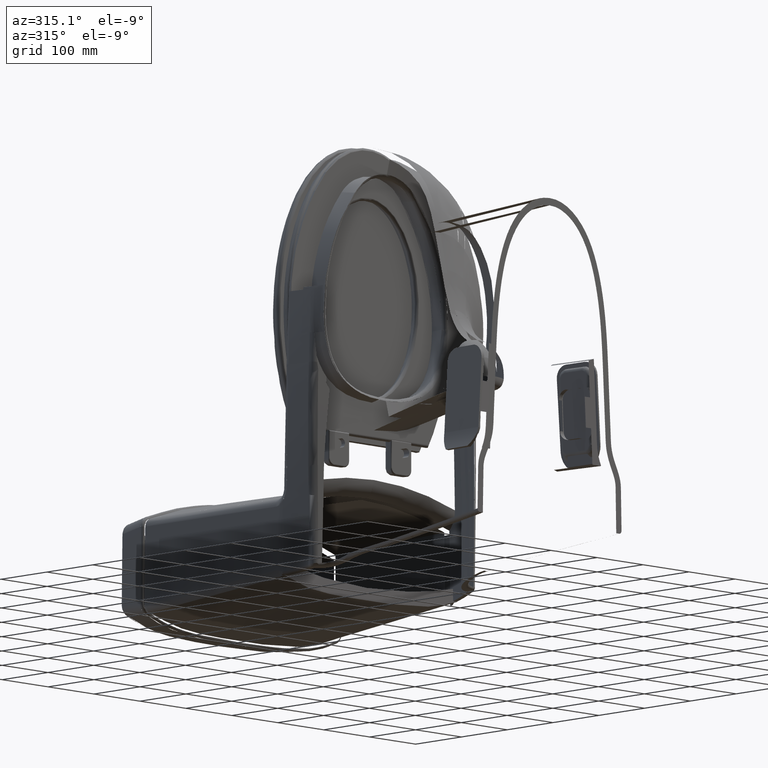
[diagram: clean part render]
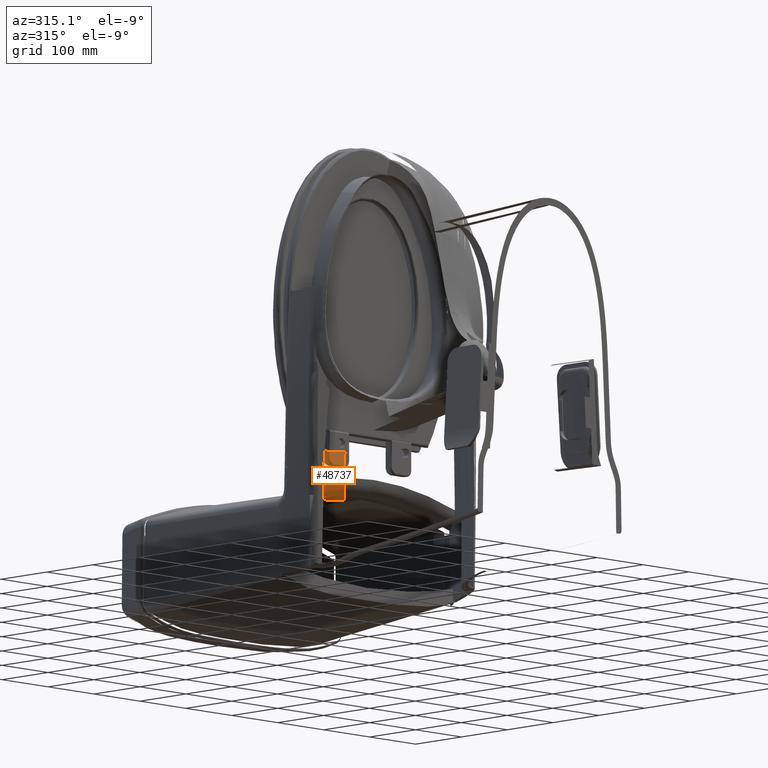
[diagram: same view with one face highlighted and labeled with its STEP entity id]
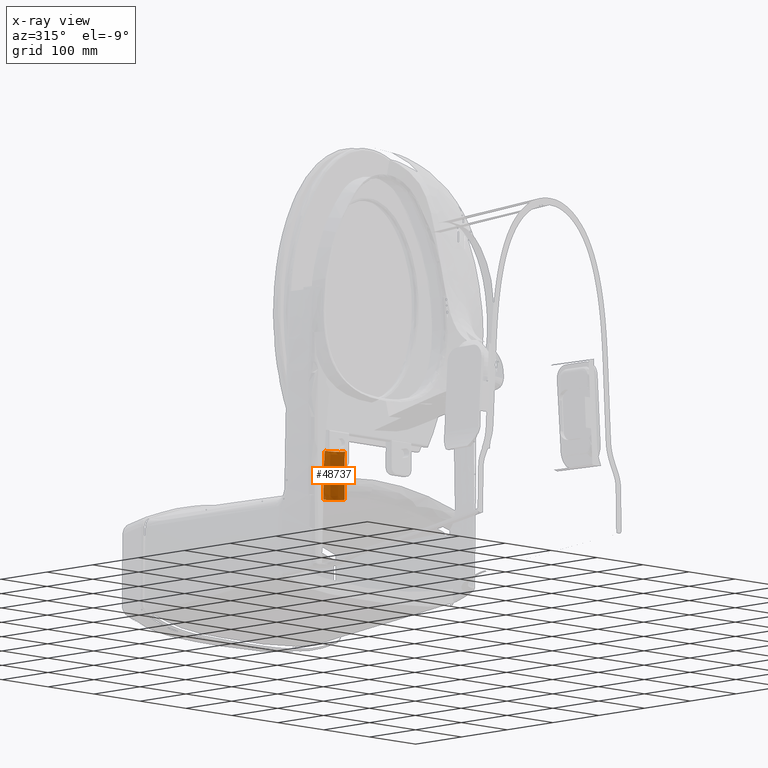
[diagram: x-ray of the same camera — body ghosted, the highlighted face saturated]
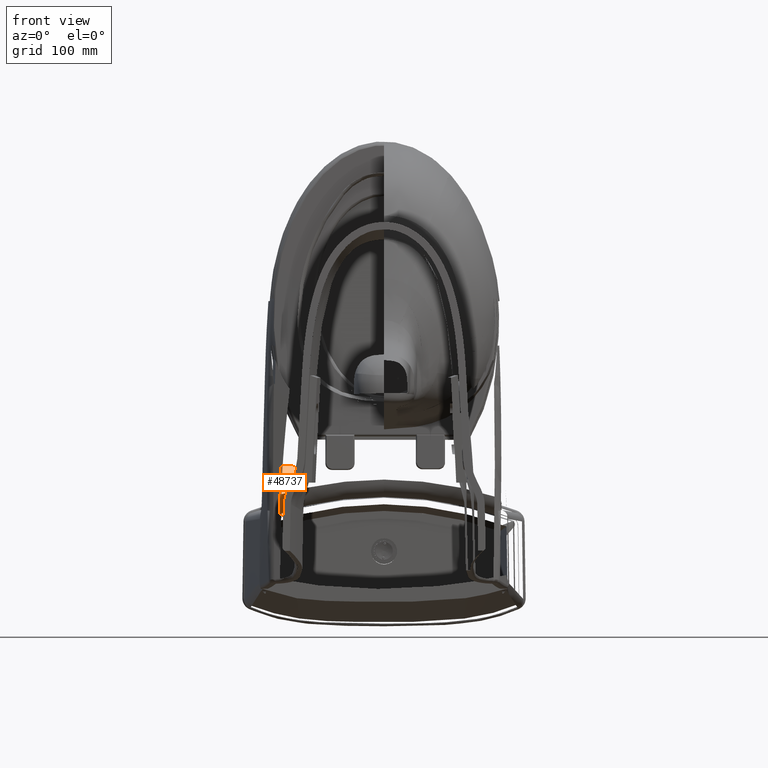
[diagram: same view with one face highlighted and labeled with its STEP entity id]
A machine part, auxiliary view. The second image highlights one B-rep face of the part: STEP entity #48737.
The next image is the same camera in x-ray: the body ghosted, the highlighted face saturated — about 0% of this face is hidden behind the body in this view.
A second angle (front view) of the same face is appended — the face is thin or edge-on in the first view.
In plain terms, the highlighted face is a freeform B-spline surface patch.
Its self-contained STEP definition (entity closure, byte-faithful):
#346 = CARTESIAN_POINT ( 'NONE',  ( -5.512745818000000900, 3.139413517000000400, -2.916660843999999900 ) ) ;
#1593 = CARTESIAN_POINT ( 'NONE',  ( -5.517707441999999900, 2.470410757999999900, -2.899083640999999800 ) ) ;
#2056 = ORIENTED_EDGE ( 'NONE', *, *, #99088, .T. ) ;
#2198 = CARTESIAN_POINT ( 'NONE',  ( -5.839647681999999000, 1.544558163000000000, -2.537458885000000400 ) ) ;
#2834 = CARTESIAN_POINT ( 'NONE',  ( -5.855976514000000900, 2.009975292999999700, -2.535273186000000000 ) ) ;
#3200 = CARTESIAN_POINT ( 'NONE',  ( -6.237092756477252000, 1.100916350914799700, -2.475373638651337900 ) ) ;
#3445 = CARTESIAN_POINT ( 'NONE',  ( -5.858864736999999300, 2.235536108999999900, -2.536272693999999100 ) ) ;
#4359 = CARTESIAN_POINT ( 'NONE',  ( -6.313811887421333100, 3.667111880601221100, -2.449814747995997100 ) ) ;
#5795 = CARTESIAN_POINT ( 'NONE',  ( -5.890195531632096900, 1.125955224674200400, -2.620016921654322800 ) ) ;
#6431 = CARTESIAN_POINT ( 'NONE',  ( -5.416784175586303500, 1.167858506331461700, -3.279858280076422000 ) ) ;
#7057 = CARTESIAN_POINT ( 'NONE',  ( -6.135799356414459300, 1.107975640984990800, -2.502529937370415100 ) ) ;
#10388 = CARTESIAN_POINT ( 'NONE',  ( -6.313811887421333100, 3.667111880601221100, -2.449814747995997100 ) ) ;
#11865 = CARTESIAN_POINT ( 'NONE',  ( -5.461213337511805000, 3.234739928703918900, -3.404727206433415100 ) ) ;
#11955 = EDGE_CURVE ( 'NONE', #140330, #102916, #175838, .T. ) ;
#13135 = CARTESIAN_POINT ( 'NONE',  ( -5.515890537000000600, 2.249757492000000100, -2.894685975000001100 ) ) ;
#13163 = CARTESIAN_POINT ( 'NONE',  ( -5.467897014064310400, 3.881601588627703300, -3.412839140374178500 ) ) ;
#13762 = CARTESIAN_POINT ( 'NONE',  ( -5.480526126000002700, 1.347765297000000500, -2.894559599999999600 ) ) ;
#13897 = EDGE_LOOP ( 'NONE', ( #32331, #63170, #99694, #96957, #49651, #72974, #131629, #113918, #64892, #153790, #89565, #33511, #53664, #2056, #40061, #187672 ) ) ;
#15668 = CARTESIAN_POINT ( 'NONE',  ( -5.457498137000000000, 2.696520097000000500, -3.397327844000000300 ) ) ;
#16292 = CARTESIAN_POINT ( 'NONE',  ( -6.347106548000000200, 2.219553618000000400, -2.448745306000000200 ) ) ;
#16966 = EDGE_CURVE ( 'NONE', #110795, #41112, #164847, .T. ) ;
#17538 = CARTESIAN_POINT ( 'NONE',  ( -6.324640790000000100, 3.602363048000000000, -2.447658445000000100 ) ) ;
#17664 = CARTESIAN_POINT ( 'NONE',  ( -5.514929613403213100, 4.137739347528154500, -3.195674285855657300 ) ) ;
#18801 = CARTESIAN_POINT ( 'NONE',  ( -5.827194858000000400, 1.320775886999999900, -2.540470116000000300 ) ) ;
#19489 = CARTESIAN_POINT ( 'NONE',  ( -6.321854862467556100, 4.113228209019185400, -2.446023611813056900 ) ) ;
#20110 = CARTESIAN_POINT ( 'NONE',  ( -5.457151477897769000, 2.600677875672518200, -3.387078613600015900 ) ) ;
#21455 = EDGE_CURVE ( 'NONE', #162696, #116540, #184913, .T. ) ;
#21600 = CARTESIAN_POINT ( 'NONE',  ( -5.423982133239973400, 1.607903306589385500, -3.375237294125204900 ) ) ;
#22002 = CARTESIAN_POINT ( 'NONE',  ( -6.299670950920173600, 2.443374010544749900, -2.457635754186374500 ) ) ;
#23977 = CARTESIAN_POINT ( 'NONE',  ( -6.302014951405622500, 2.579359221414018000, -2.456644209518983800 ) ) ;
#24638 = CARTESIAN_POINT ( 'NONE',  ( -6.309474611208720800, 3.287870435693938600, -2.452354431859691300 ) ) ;
#25891 = CARTESIAN_POINT ( 'NONE',  ( -6.308586588277467700, 3.190300950565164900, -2.452941543409310900 ) ) ;
#26034 = CARTESIAN_POINT ( 'NONE',  ( -5.464282800383276900, 3.622452978290917200, -3.411414162073973100 ) ) ;
#27646 = EDGE_CURVE ( 'NONE', #137232, #162696, #106708, .T. ) ;
#27886 = CARTESIAN_POINT ( 'NONE',  ( -5.470653958000000600, 4.067564399000000100, -3.419918070000000900 ) ) ;
#28142 = CARTESIAN_POINT ( 'NONE',  ( -5.478259731306780000, 4.140067605306180500, -3.358201403654483400 ) ) ;
#28528 = CARTESIAN_POINT ( 'NONE',  ( -5.471144825000002300, 1.204085486000000100, -2.897272126000000300 ) ) ;
#28544 = EDGE_CURVE ( 'NONE', #116540, #110795, #136076, .T. ) ;
#29178 = CARTESIAN_POINT ( 'NONE',  ( -5.512838258000001300, 3.880005712000000400, -2.926585360000001100 ) ) ;
#29429 = CARTESIAN_POINT ( 'NONE',  ( -5.605138524018269800, 4.133786093898055300, -2.983558440275744200 ) ) ;
#30181 = CARTESIAN_POINT ( 'NONE',  ( -6.253754193466752700, 1.365381302825458400, -2.471052138815283100 ) ) ;
#30398 = EDGE_CURVE ( 'NONE', #125063, #137232, #165465, .T. ) ;
#30419 = CARTESIAN_POINT ( 'NONE',  ( -5.517183597000001600, 2.692484071000000000, -2.904670468999999600 ) ) ;
#31052 = CARTESIAN_POINT ( 'NONE',  ( -6.338257179000001100, 1.755375516000000200, -2.452600197000000200 ) ) ;
#31348 = EDGE_CURVE ( 'NONE', #50294, #102820, #75753, .T. ) ;
#32331 = ORIENTED_EDGE ( 'NONE', *, *, #58647, .T. ) ;
#32898 = CARTESIAN_POINT ( 'NONE',  ( -5.842020921999998800, 3.364213324000000100, -2.551943587999999400 ) ) ;
#33511 = ORIENTED_EDGE ( 'NONE', *, *, #78122, .T. ) ;
#33964 = CARTESIAN_POINT ( 'NONE',  ( -5.843842900627367800, 1.129502614072663600, -2.651409886516178800 ) ) ;
#34354 = B_SPLINE_CURVE_WITH_KNOTS ( 'NONE', 3,
 ( #79899, #21600, #124938, #49834 ),
 .UNSPECIFIED., .F., .F.,
 ( 4, 4 ),
 ( 0.0000000000000000000, 1.000000000000000000 ),
 .UNSPECIFIED. ) ;
#36362 = CARTESIAN_POINT ( 'NONE',  ( -6.312086420680874000, 3.545843040101046600, -2.450721414320761000 ) ) ;
#37306 = CARTESIAN_POINT ( 'NONE',  ( -6.303088694981624100, 2.639527878707105000, -2.456197035708080500 ) ) ;
#37946 = CARTESIAN_POINT ( 'NONE',  ( -6.303928097528021200, 2.699613310888695100, -2.455799155369007300 ) ) ;
#38548 = CARTESIAN_POINT ( 'NONE',  ( -6.305347786953761100, 2.819471741565276800, -2.455054713547272400 ) ) ;
#38912 = CARTESIAN_POINT ( 'NONE',  ( -5.450815607194497800, 2.256652141923498200, -3.378830815294905100 ) ) ;
#39006 = CARTESIAN_POINT ( 'NONE',  ( -6.289569824838709500, 2.095511732847473500, -2.461013473456859400 ) ) ;
#39371 = CARTESIAN_POINT ( 'NONE',  ( -6.306503266744275700, 2.938890371631971600, -2.454358537214171000 ) ) ;
#40061 = ORIENTED_EDGE ( 'NONE', *, *, #151090, .T. ) ;
#40794 = CARTESIAN_POINT ( 'NONE',  ( -5.456621108408444200, 2.558870257571578500, -3.385944945842229300 ) ) ;
#41112 = VERTEX_POINT ( 'NONE', #94239 ) ;
#42627 = CARTESIAN_POINT ( 'NONE',  ( -5.515982030000000000, 4.062113670000000500, -2.925751043000000000 ) ) ;
#42653 = CARTESIAN_POINT ( 'NONE',  ( -5.457151477897769000, 2.600677875672518200, -3.387078613600015900 ) ) ;
#43126 = CARTESIAN_POINT ( 'NONE',  ( -5.430240444100533600, 1.730787943279424000, -3.374762824110556700 ) ) ;
#43264 = CARTESIAN_POINT ( 'NONE',  ( -5.845536457000000600, 4.142568172999999900, -2.552298274000000000 ) ) ;
#44556 = CARTESIAN_POINT ( 'NONE',  ( -5.515145375000001200, 2.915642580999999700, -2.910792759000000500 ) ) ;
#44799 = CARTESIAN_POINT ( 'NONE',  ( -5.823723840700424100, 4.126446638395415300, -2.706493681007232000 ) ) ;
#45130 = B_SPLINE_CURVE_WITH_KNOTS ( 'NONE', 3,
 ( #111959, #140834, #95840, #156290 ),
 .UNSPECIFIED., .F., .F.,
 ( 4, 4 ),
 ( 0.0000000000000000000, 1.000000000000000000 ),
 .UNSPECIFIED. ) ;
#45798 = CARTESIAN_POINT ( 'NONE',  ( -5.849608968999999300, 1.780256560000000000, -2.535642994000000300 ) ) ;
#46449 = CARTESIAN_POINT ( 'NONE',  ( -6.337470122000000900, 2.905759712000000500, -2.447801001000000200 ) ) ;
#47054 = CARTESIAN_POINT ( 'NONE',  ( -6.306040640000001800, 1.143140414000000100, -2.461501155000000100 ) ) ;
#47680 = CARTESIAN_POINT ( 'NONE',  ( -6.327829168000000900, 4.041107261999999700, -2.444996247000000200 ) ) ;
#48737 = ADVANCED_FACE ( 'NONE', ( #113258 ), #105023, .T. ) ;
#49651 = ORIENTED_EDGE ( 'NONE', *, *, #30398, .T. ) ;
#49834 = CARTESIAN_POINT ( 'NONE',  ( -5.430240444100533600, 1.730787943279424000, -3.374762824110556700 ) ) ;
#50034 = CARTESIAN_POINT ( 'NONE',  ( -6.237092756477252000, 1.100916350914799700, -2.475373638651337900 ) ) ;
#50294 = VERTEX_POINT ( 'NONE', #165160 ) ;
#50665 = CARTESIAN_POINT ( 'NONE',  ( -6.186560128687035300, 1.104406457675492800, -2.487030739326943100 ) ) ;
#52067 = CARTESIAN_POINT ( 'NONE',  ( -6.302014951405622500, 2.579359221414018000, -2.456644209518983800 ) ) ;
#53044 = CARTESIAN_POINT ( 'NONE',  ( -6.310672927418619500, 3.419532718037321800, -2.451562171456541900 ) ) ;
#53664 = ORIENTED_EDGE ( 'NONE', *, *, #11955, .T. ) ;
#54596 = CARTESIAN_POINT ( 'NONE',  ( -6.304633044602594400, 2.759576386275831400, -2.455427947317921200 ) ) ;
#57393 = CARTESIAN_POINT ( 'NONE',  ( -5.511305314999998700, 2.028097170000000100, -2.891875674000000500 ) ) ;
#57472 = VERTEX_POINT ( 'NONE', #110733 ) ;
#57821 = CARTESIAN_POINT ( 'NONE',  ( -6.321854862467556100, 4.113228209019185400, -2.446023611813056900 ) ) ;
#58023 = VERTEX_POINT ( 'NONE', #188206 ) ;
#58025 = CARTESIAN_POINT ( 'NONE',  ( -5.840765793000000100, 3.871155088000000500, -2.554197671000000300 ) ) ;
#58647 = EDGE_CURVE ( 'NONE', #169647, #50294, #186758, .T. ) ;
#58924 = CARTESIAN_POINT ( 'NONE',  ( -5.667599911883343100, 4.131496727401878600, -2.884067638598014800 ) ) ;
#59684 = CARTESIAN_POINT ( 'NONE',  ( -6.260539153322981500, 1.484998353973111500, -2.469229677805367300 ) ) ;
#59935 = CARTESIAN_POINT ( 'NONE',  ( -5.408724384000000100, 1.360072967999999900, -3.385455209000000300 ) ) ;
#62231 = CARTESIAN_POINT ( 'NONE',  ( -6.267676805016435500, 1.610833273020755500, -2.467312482678768700 ) ) ;
#63170 = ORIENTED_EDGE ( 'NONE', *, *, #31348, .T. ) ;
#64099 = CARTESIAN_POINT ( 'NONE',  ( -5.714675930989515400, 1.139737518607117900, -2.759805023372962700 ) ) ;
#64892 = ORIENTED_EDGE ( 'NONE', *, *, #16966, .T. ) ;
#65867 = EDGE_CURVE ( 'NONE', #41112, #122782, #185846, .T. ) ;
#68376 = CARTESIAN_POINT ( 'NONE',  ( -5.438434882905883500, 1.909848983286086500, -3.375027923035882200 ) ) ;
#69019 = CARTESIAN_POINT ( 'NONE',  ( -5.457151477897769000, 2.600677875672518200, -3.387078613600015900 ) ) ;
#70208 = CARTESIAN_POINT ( 'NONE',  ( -5.472992161243909400, 4.140685332420770400, -3.411517198040682900 ) ) ;
#70851 = CARTESIAN_POINT ( 'NONE',  ( -5.470209644602771700, 4.011198572866534000, -3.412601635352377800 ) ) ;
#71849 = CARTESIAN_POINT ( 'NONE',  ( -6.279714000842694200, 1.860308837878466700, -2.463916765954701700 ) ) ;
#72105 = CARTESIAN_POINT ( 'NONE',  ( -5.511006281000001100, 3.369648208000001000, -2.921657673000000300 ) ) ;
#72590 = CARTESIAN_POINT ( 'NONE',  ( -5.438434882905883500, 1.909848983286086500, -3.375027923035882200 ) ) ;
#72729 = CARTESIAN_POINT ( 'NONE',  ( -5.466774665000001800, 1.140338152000000200, -2.898642307000000300 ) ) ;
#72974 = ORIENTED_EDGE ( 'NONE', *, *, #27646, .T. ) ;
#73218 = CARTESIAN_POINT ( 'NONE',  ( -5.435920816020816600, 1.850247230592567200, -3.374728494814489100 ) ) ;
#73358 = CARTESIAN_POINT ( 'NONE',  ( -5.421604561000000500, 1.580650710000000000, -3.382800287999999400 ) ) ;
#73617 = CARTESIAN_POINT ( 'NONE',  ( -5.703034811201013600, 4.130281980325952100, -2.836514269224787600 ) ) ;
#73739 = CARTESIAN_POINT ( 'NONE',  ( -5.430240444100533600, 1.730787943279424000, -3.374762824110556700 ) ) ;
#73994 = CARTESIAN_POINT ( 'NONE',  ( -5.461226917999999500, 3.373171508000000400, -3.415416218999999500 ) ) ;
#74451 = CARTESIAN_POINT ( 'NONE',  ( -6.274125516722210500, 1.735942864633347900, -2.465527255144927700 ) ) ;
#74626 = CARTESIAN_POINT ( 'NONE',  ( -5.399537388999999800, 1.216830516000000100, -3.388184890000000200 ) ) ;
#75218 = CARTESIAN_POINT ( 'NONE',  ( -6.329742323000000500, 4.130941421000001100, -2.444151408999999800 ) ) ;
#75753 = B_SPLINE_CURVE_WITH_KNOTS ( 'NONE', 3,
 ( #50034, #50665, #7057, #166295, #109721, #5795, #33964, #152185, #64099, #122615, #124542, #123246, #107822, #123896, #180513, #6431, #166924, #78828 ),
 .UNSPECIFIED., .F., .F.,
 ( 4, 2, 2, 2, 2, 2, 2, 2, 4 ),
 ( 0.0000000000000000000, 0.1250000000000000000, 0.2500000000000000000, 0.3750000000000000000, 0.5000000000000000000, 0.6250000000000000000, 0.7500000000000000000, 0.8750000000000000000, 1.000000000000000000 ),
 .UNSPECIFIED. ) ;
#75845 = CARTESIAN_POINT ( 'NONE',  ( -6.327283874000000800, 3.358951850000000000, -2.448109329000000200 ) ) ;
#77148 = CARTESIAN_POINT ( 'NONE',  ( -6.061833578263310200, 4.119731721051763900, -2.540069717514825200 ) ) ;
#77477 = CARTESIAN_POINT ( 'NONE',  ( -6.306503266744275700, 2.938890371631971600, -2.454358537214171000 ) ) ;
#78122 = EDGE_CURVE ( 'NONE', #173887, #140330, #144510, .T. ) ;
#78828 = CARTESIAN_POINT ( 'NONE',  ( -5.397644543938842100, 1.170806635027062900, -3.381501232524033500 ) ) ;
#79899 = CARTESIAN_POINT ( 'NONE',  ( -5.420558001781591500, 1.546325508379848800, -3.375791808395198800 ) ) ;
#83166 = CARTESIAN_POINT ( 'NONE',  ( -5.440237048592846800, 1.952572898815459600, -3.375242397275363800 ) ) ;
#84422 = CARTESIAN_POINT ( 'NONE',  ( -5.454917773030416600, 2.443971571570320700, -3.382943993909646600 ) ) ;
#84525 = CARTESIAN_POINT ( 'NONE',  ( -6.284890998521643000, 1.975517606105602100, -2.462424858907338500 ) ) ;
#85653 = CARTESIAN_POINT ( 'NONE',  ( -5.459507508043290400, 2.851668063366688000, -3.394260723776408600 ) ) ;
#86505 = CARTESIAN_POINT ( 'NONE',  ( -5.533010918816573000, 4.136837221630831800, -3.141548890322520800 ) ) ;
#86873 = CARTESIAN_POINT ( 'NONE',  ( -5.503735859000001600, 1.801921394000000100, -2.890878865000001200 ) ) ;
#88133 = CARTESIAN_POINT ( 'NONE',  ( -5.395323683000000900, 1.153249965000000100, -3.389573437000001000 ) ) ;
#88775 = CARTESIAN_POINT ( 'NONE',  ( -5.510761614000001500, 3.616443652000000100, -2.925228560000000300 ) ) ;
#89105 = CARTESIAN_POINT ( 'NONE',  ( -6.304633044602594400, 2.759576386275831400, -2.455427947317921200 ) ) ;
#89565 = ORIENTED_EDGE ( 'NONE', *, *, #183537, .T. ) ;
#90016 = CARTESIAN_POINT ( 'NONE',  ( -5.855545500000000700, 2.685493664000000000, -2.541690070000000000 ) ) ;
#90643 = CARTESIAN_POINT ( 'NONE',  ( -6.328296983999999600, 1.516032448000000000, -2.455615948999999800 ) ) ;
#91309 = CARTESIAN_POINT ( 'NONE',  ( -6.269661894748044700, 4.114468959477288300, -2.458063959446897600 ) ) ;
#91944 = CARTESIAN_POINT ( 'NONE',  ( -5.962429784314981200, 4.122429302206969100, -2.598369247951212400 ) ) ;
#92557 = CARTESIAN_POINT ( 'NONE',  ( -5.813112581000000400, 1.111705101999999900, -2.544359950000000500 ) ) ;
#94239 = CARTESIAN_POINT ( 'NONE',  ( -6.313811887421333100, 3.667111880601221100, -2.449814747995997100 ) ) ;
#95727 = CARTESIAN_POINT ( 'NONE',  ( -6.318614783387617200, 3.963375306911409300, -2.447441907450679900 ) ) ;
#95840 = CARTESIAN_POINT ( 'NONE',  ( -5.413619791318240900, 1.421487250219526200, -3.376892485825965900 ) ) ;
#96957 = ORIENTED_EDGE ( 'NONE', *, *, #110264, .T. ) ;
#97562 = CARTESIAN_POINT ( 'NONE',  ( -6.305932384261341300, 2.879248655318211700, -2.454707002160188400 ) ) ;
#98371 = CARTESIAN_POINT ( 'NONE',  ( -5.397644543938842100, 1.170806635027062900, -3.381501232524033500 ) ) ;
#98662 = CARTESIAN_POINT ( 'NONE',  ( -6.279714000842694200, 1.860308837878466700, -2.463916765954701700 ) ) ;
#99088 = EDGE_CURVE ( 'NONE', #102916, #57472, #166850, .T. ) ;
#99694 = ORIENTED_EDGE ( 'NONE', *, *, #119345, .T. ) ;
#99810 = CARTESIAN_POINT ( 'NONE',  ( -5.458738213316059400, 2.725712315187812400, -3.390464870372814000 ) ) ;
#100683 = EDGE_CURVE ( 'NONE', #173677, #169647, #156232, .T. ) ;
#101674 = CARTESIAN_POINT ( 'NONE',  ( -5.433325052999999900, 1.812058717000000700, -3.382026716000000800 ) ) ;
#102548 = CARTESIAN_POINT ( 'NONE',  ( -5.578114331394962400, 4.134860575589915000, -3.035486554248731900 ) ) ;
#102820 = VERTEX_POINT ( 'NONE', #98371 ) ;
#102916 = VERTEX_POINT ( 'NONE', #23977 ) ;
#102932 = CARTESIAN_POINT ( 'NONE',  ( -5.459002329000000500, 2.918920755000001100, -3.403871580000000100 ) ) ;
#103932 = CARTESIAN_POINT ( 'NONE',  ( -6.246000426839506400, 1.237336988163633800, -2.473090657943208400 ) ) ;
#104176 = CARTESIAN_POINT ( 'NONE',  ( -5.850903558999999800, 2.910612308999999800, -2.545373291000000200 ) ) ;
#105023 =( BOUNDED_SURFACE ( )  B_SPLINE_SURFACE ( 3, 3, ( 
 ( #117763, #27886, #162094, #161462, #73994, #176914, #102932, #15668, #176280, #118406, #160193, #101674, #73358, #59935, #74626, #88133 ),
 ( #115838, #42627, #29178, #88775, #72105, #346, #44556, #30419, #1593, #13135, #57393, #86873, #189790, #13762, #28528, #72729 ),
 ( #43264, #146043, #58025, #160836, #32898, #106067, #104176, #90016, #135631, #3445, #2834, #45798, #2198, #18801, #121540, #92557 ),
 ( #75218, #47680, #150436, #17538, #75845, #179441, #46449, #134371, #180705, #16292, #180059, #31052, #90643, #134993, #47054, #105426 ) ),
 .UNSPECIFIED., .F., .F., .F. ) 
 B_SPLINE_SURFACE_WITH_KNOTS ( ( 4, 4 ),
 ( 4, 1, 1, 1, 1, 1, 1, 1, 1, 1, 1, 1, 1, 4 ),
 ( 0.03643152585191999900, 0.9635566113479999700 ),
 ( 0.008206518765942000200, 0.09536721074501999800, 0.1822126488630000100, 0.2599447559270000000, 0.3313834582190000000, 0.4032356307850000200, 0.4762424414500000000, 0.5490246805540000000, 0.6214309207910000400, 0.6937545771480000400, 0.7674676689189999800, 0.8438589534889999700, 0.9219670051230000100, 0.9841838095839999800 ),
 .UNSPECIFIED. ) 
 GEOMETRIC_REPRESENTATION_ITEM ( )  RATIONAL_B_SPLINE_SURFACE ( (
 ( 1.106085050113000000, 1.106085050113000000, 1.106085050113000000, 1.106085050113000000, 1.106085050113000000, 1.106085050113000000, 1.106085050113000000, 1.106085050113000000, 1.106085050113000000, 1.106085050113000000, 1.106085050113000000, 1.106085050113000000, 1.106085050113000000, 1.106085050113000000, 1.106085050113000000, 1.106085050113000000),
 ( 0.9646401264520000400, 0.9646401264520000400, 0.9646401264520000400, 0.9646401264520000400, 0.9646401264520000400, 0.9646401264520000400, 0.9646401264520000400, 0.9646401264520000400, 0.9646401264520000400, 0.9646401264520000400, 0.9646401264520000400, 0.9646401264520000400, 0.9646401264520000400, 0.9646401264520000400, 0.9646401264520000400, 0.9646401264520000400),
 ( 0.9646383166519999500, 0.9646383166519999500, 0.9646383166519999500, 0.9646383166519999500, 0.9646383166519999500, 0.9646383166519999500, 0.9646383166519999500, 0.9646383166519999500, 0.9646383166519999500, 0.9646383166519999500, 0.9646383166519999500, 0.9646383166519999500, 0.9646383166519999500, 0.9646383166519999500, 0.9646383166519999500, 0.9646383166519999500),
 ( 1.106079620712000100, 1.106079620712000100, 1.106079620712000100, 1.106079620712000100, 1.106079620712000100, 1.106079620712000100, 1.106079620712000100, 1.106079620712000100, 1.106079620712000100, 1.106079620712000100, 1.106079620712000100, 1.106079620712000100, 1.106079620712000100, 1.106079620712000100, 1.106079620712000100, 1.106079620712000100) ) ) 
 REPRESENTATION_ITEM ( '' )  SURFACE ( )  );
#105426 = CARTESIAN_POINT ( 'NONE',  ( -6.301471907999999900, 1.078335337000000200, -2.462641662000000200 ) ) ;
#106067 = CARTESIAN_POINT ( 'NONE',  ( -5.846003273000000900, 3.134773165000000400, -2.548955737000000400 ) ) ;
#106708 = B_SPLINE_CURVE_WITH_KNOTS ( 'NONE', 3,
 ( #68376, #83166, #171247, #38912, #84422, #40794, #69019 ),
 .UNSPECIFIED., .F., .F.,
 ( 4, 1, 1, 1, 4 ),
 ( 0.2563599743499159200, 0.2986357512019419700, 0.3709594075589419700, 0.4433656477959420100, 0.4846396982465829300 ),
 .UNSPECIFIED. ) ;
#107822 = CARTESIAN_POINT ( 'NONE',  ( -5.513692995152446500, 1.157330114759574700, -3.028160897521225100 ) ) ;
#109721 = CARTESIAN_POINT ( 'NONE',  ( -5.986047833802540000, 1.118786630076471500, -2.565091462375184200 ) ) ;
#110264 = EDGE_CURVE ( 'NONE', #58023, #125063, #34354, .T. ) ;
#110555 = CARTESIAN_POINT ( 'NONE',  ( -6.315911944560435900, 3.814707621998790100, -2.448711248724132700 ) ) ;
#110733 = CARTESIAN_POINT ( 'NONE',  ( -6.293432686445126700, 2.220165012183979800, -2.459752780307353800 ) ) ;
#110795 = VERTEX_POINT ( 'NONE', #57821 ) ;
#111959 = CARTESIAN_POINT ( 'NONE',  ( -5.397644543938842100, 1.170806635027062900, -3.381501232524033500 ) ) ;
#113258 = FACE_OUTER_BOUND ( 'NONE', #13897, .T. ) ;
#113918 = ORIENTED_EDGE ( 'NONE', *, *, #28544, .T. ) ;
#115838 = CARTESIAN_POINT ( 'NONE',  ( -5.517948039000001100, 4.153289826000000000, -2.924933027000000200 ) ) ;
#116540 = VERTEX_POINT ( 'NONE', #130640 ) ;
#117763 = CARTESIAN_POINT ( 'NONE',  ( -5.472649619000000200, 4.158993216999999900, -3.419099847000000000 ) ) ;
#118020 = CARTESIAN_POINT ( 'NONE',  ( -5.781100004919707700, 4.127756831339507200, -2.747723617824923800 ) ) ;
#118406 = CARTESIAN_POINT ( 'NONE',  ( -5.449759028000000800, 2.256762004000000500, -3.386485106000000300 ) ) ;
#119261 = B_SPLINE_CURVE_WITH_KNOTS ( 'NONE', 3,
 ( #170048, #39006, #84525, #98662 ),
 .UNSPECIFIED., .F., .F.,
 ( 4, 4 ),
 ( 0.0000000000000000000, 1.000000000000000000 ),
 .UNSPECIFIED. ) ;
#119345 = EDGE_CURVE ( 'NONE', #102820, #58023, #45130, .T. ) ;
#121540 = CARTESIAN_POINT ( 'NONE',  ( -5.817618435000000000, 1.175920460000000200, -2.543084571999999700 ) ) ;
#122615 = CARTESIAN_POINT ( 'NONE',  ( -5.638338872595575400, 1.146100003159105500, -2.842626562953517700 ) ) ;
#122782 = VERTEX_POINT ( 'NONE', #139444 ) ;
#123246 = CARTESIAN_POINT ( 'NONE',  ( -5.541086605060975500, 1.154733737302096900, -2.979713458747221400 ) ) ;
#123896 = CARTESIAN_POINT ( 'NONE',  ( -5.466933578205326300, 1.162037358156601000, -3.127320516918641300 ) ) ;
#124542 = CARTESIAN_POINT ( 'NONE',  ( -5.603410400873930700, 1.149118564149810700, -2.886942612488163200 ) ) ;
#124718 = CARTESIAN_POINT ( 'NONE',  ( -6.293432686445126700, 2.220165012183979800, -2.459752780307353800 ) ) ;
#124938 = CARTESIAN_POINT ( 'NONE',  ( -5.427218273339126300, 1.669392009970395800, -3.374890546408319200 ) ) ;
#125063 = VERTEX_POINT ( 'NONE', #73739 ) ;
#125359 = CARTESIAN_POINT ( 'NONE',  ( -6.296634436109322100, 2.323484414450142300, -2.458707849333391100 ) ) ;
#130640 = CARTESIAN_POINT ( 'NONE',  ( -5.472992161243909400, 4.140685332420770400, -3.411517198040682900 ) ) ;
#131629 = ORIENTED_EDGE ( 'NONE', *, *, #21455, .T. ) ;
#134371 = CARTESIAN_POINT ( 'NONE',  ( -6.342778208000000400, 2.678230616000000000, -2.447638773000000000 ) ) ;
#134993 = CARTESIAN_POINT ( 'NONE',  ( -6.315738145000002700, 1.289458712000000300, -2.459028062999999900 ) ) ;
#135631 = CARTESIAN_POINT ( 'NONE',  ( -5.858541563000001100, 2.460111636000000200, -2.538500728999999900 ) ) ;
#136076 = B_SPLINE_CURVE_WITH_KNOTS ( 'NONE', 3,
 ( #190037, #28142, #159802, #17664, #86505, #102548, #29429, #58924, #73617, #118020, #44799, #147551, #91944, #77148, #165246, #166529, #91309, #19489 ),
 .UNSPECIFIED., .F., .F.,
 ( 4, 2, 2, 2, 2, 2, 2, 2, 4 ),
 ( 0.0000000000000000000, 0.1250000000000000000, 0.2500000000000000000, 0.3750000000000000000, 0.5000000000000000000, 0.6250000000000000000, 0.7500000000000000000, 0.8750000000000000000, 1.000000000000000000 ),
 .UNSPECIFIED. ) ;
#137232 = VERTEX_POINT ( 'NONE', #152047 ) ;
#139444 = CARTESIAN_POINT ( 'NONE',  ( -6.309474611208720800, 3.287870435693938600, -2.452354431859691300 ) ) ;
#140330 = VERTEX_POINT ( 'NONE', #89105 ) ;
#140834 = CARTESIAN_POINT ( 'NONE',  ( -5.405911351920508400, 1.296285450706003300, -3.378845293668806700 ) ) ;
#141629 = CARTESIAN_POINT ( 'NONE',  ( -6.309474611208720800, 3.287870435693938600, -2.452354431859691300 ) ) ;
#141987 = CARTESIAN_POINT ( 'NONE',  ( -6.321854862467556100, 4.113228209019185400, -2.446023611813056900 ) ) ;
#144510 = B_SPLINE_CURVE_WITH_KNOTS ( 'NONE', 3,
 ( #170894, #97562, #38548, #54596 ),
 .UNSPECIFIED., .F., .F.,
 ( 4, 4 ),
 ( 0.0000000000000000000, 1.000000000000000000 ),
 .UNSPECIFIED. ) ;
#146043 = CARTESIAN_POINT ( 'NONE',  ( -5.843601982000000900, 4.052001509999999300, -2.553126462000000300 ) ) ;
#147551 = CARTESIAN_POINT ( 'NONE',  ( -5.914393203745699900, 4.123782760817357800, -2.631814762229423900 ) ) ;
#150436 = CARTESIAN_POINT ( 'NONE',  ( -6.325105252999999400, 3.861781896999999700, -2.446420831000000200 ) ) ;
#151090 = EDGE_CURVE ( 'NONE', #57472, #173677, #119261, .T. ) ;
#152047 = CARTESIAN_POINT ( 'NONE',  ( -5.438434882905883500, 1.909848983286086500, -3.375027923035882200 ) ) ;
#152185 = CARTESIAN_POINT ( 'NONE',  ( -5.756079619697350000, 1.136394014319574100, -2.721305515445608500 ) ) ;
#153790 = ORIENTED_EDGE ( 'NONE', *, *, #65867, .T. ) ;
#153911 = B_SPLINE_CURVE_WITH_KNOTS ( 'NONE', 3,
 ( #24638, #25891, #157534, #39371 ),
 .UNSPECIFIED., .F., .F.,
 ( 4, 4 ),
 ( 0.0000000000000000000, 1.000000000000000000 ),
 .UNSPECIFIED. ) ;
#156232 = B_SPLINE_CURVE_WITH_KNOTS ( 'NONE', 3,
 ( #178016, #74451, #62231, #177373 ),
 .UNSPECIFIED., .F., .F.,
 ( 4, 4 ),
 ( 0.0000000000000000000, 1.000000000000000000 ),
 .UNSPECIFIED. ) ;
#156290 = CARTESIAN_POINT ( 'NONE',  ( -5.420558001781591500, 1.546325508379848800, -3.375791808395198800 ) ) ;
#157534 = CARTESIAN_POINT ( 'NONE',  ( -6.307736119150945300, 3.074175744080642800, -2.453582444506684700 ) ) ;
#159802 = CARTESIAN_POINT ( 'NONE',  ( -5.487556665090726100, 4.139354512302881000, -3.304003721555580900 ) ) ;
#160193 = CARTESIAN_POINT ( 'NONE',  ( -5.442706283999999800, 2.036742549000000800, -3.383309419999999800 ) ) ;
#160836 = CARTESIAN_POINT ( 'NONE',  ( -5.839920085000001000, 3.609470050000000500, -2.553887232000000600 ) ) ;
#161462 = CARTESIAN_POINT ( 'NONE',  ( -5.463440253000000800, 3.620608560000000000, -3.419222804000000800 ) ) ;
#162094 = CARTESIAN_POINT ( 'NONE',  ( -5.467125293000000500, 3.884938390999999500, -3.420722860000000100 ) ) ;
#162696 = VERTEX_POINT ( 'NONE', #20110 ) ;
#164594 = CARTESIAN_POINT ( 'NONE',  ( -6.302014951405622500, 2.579359221414018000, -2.456644209518983800 ) ) ;
#164847 = B_SPLINE_CURVE_WITH_KNOTS ( 'NONE', 3,
 ( #141987, #95727, #110555, #10388 ),
 .UNSPECIFIED., .F., .F.,
 ( 4, 4 ),
 ( 0.0000000000000000000, 1.000000000000000000 ),
 .UNSPECIFIED. ) ;
#165160 = CARTESIAN_POINT ( 'NONE',  ( -6.237092756477252000, 1.100916350914799700, -2.475373638651337900 ) ) ;
#165246 = CARTESIAN_POINT ( 'NONE',  ( -6.113191773105386400, 4.118387784375443100, -2.515214759888771700 ) ) ;
#165465 = B_SPLINE_CURVE_WITH_KNOTS ( 'NONE', 3,
 ( #43126, #176106, #73218, #72590 ),
 .UNSPECIFIED., .F., .F.,
 ( 4, 4 ),
 ( 0.0000000000000000000, 1.000000000000000000 ),
 .UNSPECIFIED. ) ;
#166295 = CARTESIAN_POINT ( 'NONE',  ( -6.035540201973990500, 1.115165897386224400, -2.541558752873256400 ) ) ;
#166529 = CARTESIAN_POINT ( 'NONE',  ( -6.217109421432781800, 4.115756349194990400, -2.474214099073446200 ) ) ;
#166850 = B_SPLINE_CURVE_WITH_KNOTS ( 'NONE', 3,
 ( #164594, #22002, #125359, #124718 ),
 .UNSPECIFIED., .F., .F.,
 ( 4, 4 ),
 ( 0.0000000000000000000, 1.000000000000000000 ),
 .UNSPECIFIED. ) ;
#166924 = CARTESIAN_POINT ( 'NONE',  ( -5.405365521671980900, 1.169458125629000200, -3.330980454299802900 ) ) ;
#169647 = VERTEX_POINT ( 'NONE', #171577 ) ;
#170048 = CARTESIAN_POINT ( 'NONE',  ( -6.293432686445126700, 2.220165012183979800, -2.459752780307353800 ) ) ;
#170894 = CARTESIAN_POINT ( 'NONE',  ( -6.306503266744275700, 2.938890371631971600, -2.454358537214171000 ) ) ;
#171247 = CARTESIAN_POINT ( 'NONE',  ( -5.444810730996373100, 2.068274802254023400, -3.376117150402410800 ) ) ;
#171554 = CARTESIAN_POINT ( 'NONE',  ( -6.304633044602594400, 2.759576386275831400, -2.455427947317921200 ) ) ;
#171577 = CARTESIAN_POINT ( 'NONE',  ( -6.260539153322981500, 1.484998353973111500, -2.469229677805367300 ) ) ;
#173677 = VERTEX_POINT ( 'NONE', #71849 ) ;
#173887 = VERTEX_POINT ( 'NONE', #77477 ) ;
#175001 = CARTESIAN_POINT ( 'NONE',  ( -5.460725090820930400, 3.106223708041283800, -3.401407027830681600 ) ) ;
#175838 = B_SPLINE_CURVE_WITH_KNOTS ( 'NONE', 3,
 ( #171554, #37946, #37306, #52067 ),
 .UNSPECIFIED., .F., .F.,
 ( 4, 4 ),
 ( 0.0000000000000000000, 1.000000000000000000 ),
 .UNSPECIFIED. ) ;
#176106 = CARTESIAN_POINT ( 'NONE',  ( -5.433182409220521000, 1.790562684719409600, -3.374641124712470100 ) ) ;
#176280 = CARTESIAN_POINT ( 'NONE',  ( -5.454603191000000400, 2.475786861000000000, -3.391301731000000400 ) ) ;
#176914 = CARTESIAN_POINT ( 'NONE',  ( -5.459970200000000800, 3.142579995000000200, -3.410111354000000100 ) ) ;
#177373 = CARTESIAN_POINT ( 'NONE',  ( -6.260539153322981500, 1.484998353973111500, -2.469229677805367300 ) ) ;
#178016 = CARTESIAN_POINT ( 'NONE',  ( -6.279714000842694200, 1.860308837878466700, -2.463916765954701700 ) ) ;
#179441 = CARTESIAN_POINT ( 'NONE',  ( -6.331895174000000500, 3.130439126000001100, -2.448060695000000100 ) ) ;
#180059 = CARTESIAN_POINT ( 'NONE',  ( -6.344493770999998900, 1.989329033000000000, -2.450307325999999900 ) ) ;
#180513 = CARTESIAN_POINT ( 'NONE',  ( -5.447566204917258400, 1.164148209937384500, -3.178025739625107300 ) ) ;
#180705 = CARTESIAN_POINT ( 'NONE',  ( -6.346351487000001500, 2.448840563000000500, -2.447885372000000000 ) ) ;
#183537 = EDGE_CURVE ( 'NONE', #122782, #173887, #153911, .T. ) ;
#184913 = B_SPLINE_CURVE_WITH_KNOTS ( 'NONE', 3,
 ( #42653, #99810, #85653, #175001, #11865, #189166, #26034, #13163, #70851, #70208 ),
 .UNSPECIFIED., .F., .F.,
 ( 4, 2, 2, 2, 4 ),
 ( 0.0000000000000000000, 0.2500000000000000000, 0.5000000000000000000, 0.7500000000000000000, 1.000000000000000000 ),
 .UNSPECIFIED. ) ;
#185846 = B_SPLINE_CURVE_WITH_KNOTS ( 'NONE', 3,
 ( #4359, #36362, #53044, #141629 ),
 .UNSPECIFIED., .F., .F.,
 ( 4, 4 ),
 ( 0.0000000000000000000, 1.000000000000000000 ),
 .UNSPECIFIED. ) ;
#186758 = B_SPLINE_CURVE_WITH_KNOTS ( 'NONE', 3,
 ( #59684, #30181, #103932, #3200 ),
 .UNSPECIFIED., .F., .F.,
 ( 4, 4 ),
 ( 0.0000000000000000000, 1.000000000000000000 ),
 .UNSPECIFIED. ) ;
#187672 = ORIENTED_EDGE ( 'NONE', *, *, #100683, .T. ) ;
#188206 = CARTESIAN_POINT ( 'NONE',  ( -5.420558001781591500, 1.546325508379848800, -3.375791808395198800 ) ) ;
#189166 = CARTESIAN_POINT ( 'NONE',  ( -5.462996528619906500, 3.492883830878410900, -3.409733116016472600 ) ) ;
#189790 = CARTESIAN_POINT ( 'NONE',  ( -5.493101768999999000, 1.569255850000000200, -2.891837775000001300 ) ) ;
#190037 = CARTESIAN_POINT ( 'NONE',  ( -5.472992161243909400, 4.140685332420770400, -3.411517198040682900 ) ) ;